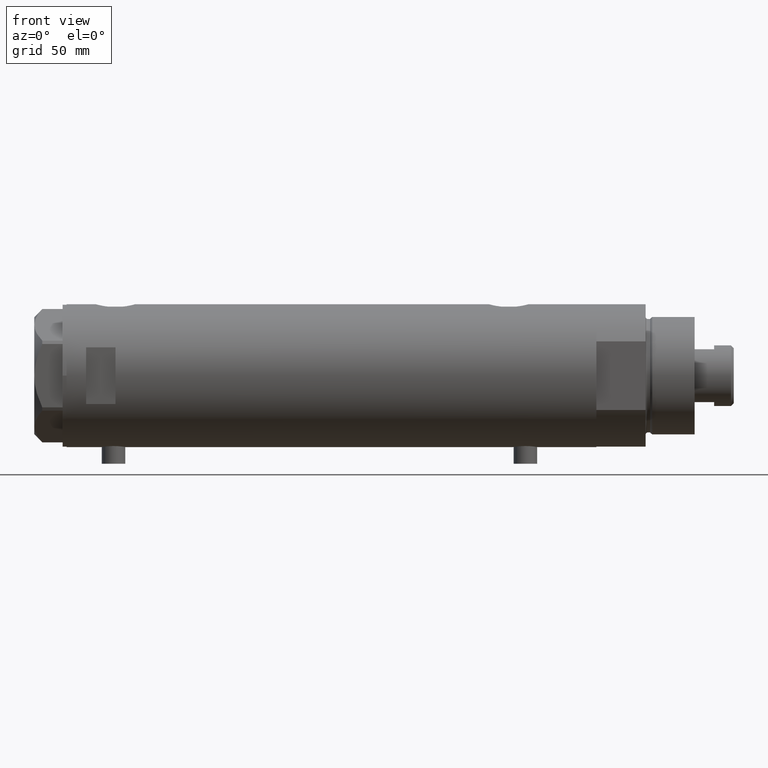
[diagram: clean part render]
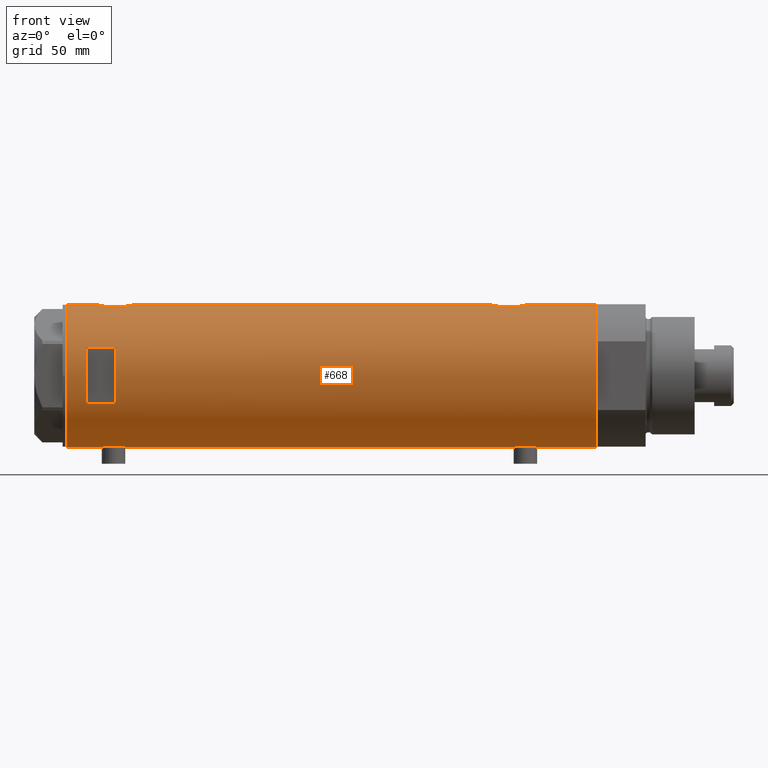
[diagram: same view with one face highlighted and labeled with its STEP entity id]
A machine part, front view. The second image highlights one B-rep face of the part: STEP entity #668.
In plain terms, the highlighted cylindrical surface (partial cylindrical patch) has radius 36.5 mm, axis along (-1, -0, 0).
Its self-contained STEP definition (entity closure, byte-faithful):
#6 = CARTESIAN_POINT ( 'NONE',  ( -36.49999999999999289, -0.4082012689449562859, 105.1500000000000057 ) ) ;
#15 = CARTESIAN_POINT ( 'NONE',  ( 35.39807338191549491, -8.909271871950329214, -85.94919617267213141 ) ) ;
#35 = CARTESIAN_POINT ( 'NONE',  ( 0.000000000000000000, 0.000000000000000000, -135.4000000000000057 ) ) ;
#49 = CARTESIAN_POINT ( 'NONE',  ( -36.39621039793029666, -2.776267550998806843, -93.48569246893222839 ) ) ;
#58 = DIRECTION ( 'NONE',  ( 0.000000000000000000, 0.000000000000000000, 1.000000000000000000 ) ) ;
#93 = CARTESIAN_POINT ( 'NONE',  ( -35.99695583620881933, -6.039273428153905776, 109.7777555501224214 ) ) ;
#95 = CARTESIAN_POINT ( 'NONE',  ( 36.29582892817134621, -3.881628320031159873, 119.6293443453498782 ) ) ;
#113 = CARTESIAN_POINT ( 'NONE',  ( -36.02823773219768810, -5.849994928883552880, 109.1904489851435613 ) ) ;
#114 = VECTOR ( 'NONE', #950, 1000.000000000000000 ) ;
#144 = ORIENTED_EDGE ( 'NONE', *, *, #1298, .F. ) ;
#159 = CARTESIAN_POINT ( 'NONE',  ( 36.18850502651835654, -4.779575967213809840, 101.6022084710984501 ) ) ;
#171 = DIRECTION ( 'NONE',  ( 0.000000000000000000, 0.000000000000000000, 1.000000000000000000 ) ) ;
#190 = ORIENTED_EDGE ( 'NONE', *, *, #750, .F. ) ;
#192 = CARTESIAN_POINT ( 'NONE',  ( 35.93373217836897737, -6.415110096330620237, 118.0870426635508892 ) ) ;
#198 = LINE ( 'NONE', #1580, #398 ) ;
#207 = CARTESIAN_POINT ( 'NONE',  ( 36.50000000000000000, 0.000000000000000000, 100.4000000000000057 ) ) ;
#251 = CARTESIAN_POINT ( 'NONE',  ( -36.50000000000000000, 4.469960816887838430E-15, -135.4000000000000057 ) ) ;
#257 = DIRECTION ( 'NONE',  ( 0.000000000000000000, 0.000000000000000000, 1.000000000000000000 ) ) ;
#284 = CARTESIAN_POINT ( 'NONE',  ( -36.49999999999999289, -0.4082012689449562859, -105.3499999999999943 ) ) ;
#289 = CARTESIAN_POINT ( 'NONE',  ( 35.93363298843768661, -6.415574104180976178, -98.28651472888890339 ) ) ;
#303 = CARTESIAN_POINT ( 'NONE',  ( -36.06605150775667568, -5.613853192123348101, -101.8776568827254465 ) ) ;
#324 = CARTESIAN_POINT ( 'NONE',  ( -36.35061318816141096, -3.303361544904982239, -104.4096404194302039 ) ) ;
#330 = VERTEX_POINT ( 'NONE', #1333 ) ;
#355 = CARTESIAN_POINT ( 'NONE',  ( 35.52323553852023963, -8.411295122831250026, -85.10247607048908947 ) ) ;
#364 = CARTESIAN_POINT ( 'NONE',  ( -36.47262891311153510, -1.427622242603855396, -93.01175370788300256 ) ) ;
#384 = CARTESIAN_POINT ( 'NONE',  ( -36.44454782745417276, -2.020757099930494682, -93.18214135579002289 ) ) ;
#388 = ORIENTED_EDGE ( 'NONE', *, *, #2095, .T. ) ;
#398 = VECTOR ( 'NONE', #1857, 1000.000000000000000 ) ;
#420 = CARTESIAN_POINT ( 'NONE',  ( 36.50000000000000000, 4.344614706140975428E-19, -80.59999999999999432 ) ) ;
#430 = CARTESIAN_POINT ( 'NONE',  ( 36.41856252531823657, -2.482507212621166470, 100.7004348715349380 ) ) ;
#445 = VERTEX_POINT ( 'NONE', #3667 ) ;
#459 = CARTESIAN_POINT ( 'NONE',  ( -36.36635911126388265, -3.125815113635437292, 105.9839439959209955 ) ) ;
#462 = CARTESIAN_POINT ( 'NONE',  ( 36.09633718678917802, -5.417295330713078449, 118.8091486734521141 ) ) ;
#474 = CARTESIAN_POINT ( 'NONE',  ( 35.79656810172926384, -7.133411935499478496, 103.3874512144232511 ) ) ;
#477 = CARTESIAN_POINT ( 'NONE',  ( -14.49137674618942739, -33.50000000000000000, 125.3999999999999773 ) ) ;
#504 = CARTESIAN_POINT ( 'NONE',  ( 35.69273631926343882, -7.635692914629149008, 103.9379980434851234 ) ) ;
#507 = CARTESIAN_POINT ( 'NONE',  ( -36.14410773716529235, -5.085921866747754372, 115.0383587842047035 ) ) ;
#514 = DIRECTION ( 'NONE',  ( 0.000000000000000000, 0.000000000000000000, 1.000000000000000000 ) ) ;
#529 = CARTESIAN_POINT ( 'NONE',  ( -36.30107494031872051, -3.820993528321233068, 116.3630615353631015 ) ) ;
#542 = VERTEX_POINT ( 'NONE', #477 ) ;
#597 = VERTEX_POINT ( 'NONE', #635 ) ;
#600 = CARTESIAN_POINT ( 'NONE',  ( -35.96816095843705341, -6.208699946936198977, -99.92496377127785934 ) ) ;
#623 = VECTOR ( 'NONE', #1896, 1000.000000000000000 ) ;
#627 = CARTESIAN_POINT ( 'NONE',  ( 36.50000000000000000, 0.000000000000000000, -100.5999999999999801 ) ) ;
#635 = CARTESIAN_POINT ( 'NONE',  ( -36.50000000000000000, 1.603939656238031057E-15, -92.84999999999999432 ) ) ;
#643 = LINE ( 'NONE', #2988, #4153 ) ;
#647 = LINE ( 'NONE', #1557, #1582 ) ;
#660 = CARTESIAN_POINT ( 'NONE',  ( -35.98821803976956346, -6.090959022952117330, -97.68426116850579888 ) ) ;
#668 = ADVANCED_FACE ( 'NONE', ( #3476, #2877 ), #2581, .T. ) ;
#688 = CARTESIAN_POINT ( 'NONE',  ( 36.12724769814495573, -5.207618053557754756, -82.05935879511534381 ) ) ;
#705 = CARTESIAN_POINT ( 'NONE',  ( -36.44621655743049615, -2.016281777336074832, 105.4701702330088438 ) ) ;
#708 = EDGE_CURVE ( 'NONE', #1941, #445, #1974, .T. ) ;
#714 = DIRECTION ( 'NONE',  ( 1.000000000000000000, 0.000000000000000000, 0.000000000000000000 ) ) ;
#750 = EDGE_CURVE ( 'NONE', #1249, #2876, #3085, .T. ) ;
#770 = CARTESIAN_POINT ( 'NONE',  ( -36.30107494031872051, -3.820993528321233068, -94.13693846463692694 ) ) ;
#775 = VERTEX_POINT ( 'NONE', #1076 ) ;
#793 = CARTESIAN_POINT ( 'NONE',  ( -36.16096637594732499, -4.968588355849258953, 107.5866550718223920 ) ) ;
#813 = CARTESIAN_POINT ( 'NONE',  ( -36.26692673949090562, -4.128477002029503851, 106.6900001256783526 ) ) ;
#817 = DIRECTION ( 'NONE',  ( 1.000000000000000000, 0.000000000000000000, 0.000000000000000000 ) ) ;
#823 = AXIS2_PLACEMENT_3D ( 'NONE', #4263, #3203, #877 ) ;
#843 = EDGE_CURVE ( 'NONE', #2062, #2475, #2643, .T. ) ;
#844 = CARTESIAN_POINT ( 'NONE',  ( 0.000000000000000000, 0.000000000000000000, 135.4000000000000057 ) ) ;
#851 = CARTESIAN_POINT ( 'NONE',  ( 36.50000000000000000, 4.344614706140975428E-19, -80.59999999999999432 ) ) ;
#859 = ORIENTED_EDGE ( 'NONE', *, *, #1473, .T. ) ;
#864 = CARTESIAN_POINT ( 'NONE',  ( -36.43335814606993495, -2.212659578761325463, 117.2487639916951139 ) ) ;
#877 = DIRECTION ( 'NONE',  ( 1.000000000000000000, 0.000000000000000000, 0.000000000000000000 ) ) ;
#881 = CARTESIAN_POINT ( 'NONE',  ( 36.50000000000000711, -0.5031001875915692700, 100.4000000000000341 ) ) ;
#884 = CARTESIAN_POINT ( 'NONE',  ( -36.49297138689434661, -0.8222528563518530786, 117.6093311205343781 ) ) ;
#943 = DIRECTION ( 'NONE',  ( -0.000000000000000000, -0.000000000000000000, -1.000000000000000000 ) ) ;
#950 = DIRECTION ( 'NONE',  ( 0.000000000000000000, 0.000000000000000000, 1.000000000000000000 ) ) ;
#960 = CARTESIAN_POINT ( 'NONE',  ( 35.72742963626381396, -7.471989379615407323, -97.25062260412774151 ) ) ;
#978 = CARTESIAN_POINT ( 'NONE',  ( -35.96095902952617251, -6.249754054240900913, -99.51658765420468455 ) ) ;
#984 = B_SPLINE_CURVE_WITH_KNOTS ( 'NONE', 3,
 ( #3096, #6, #1383, #2406, #705, #2072, #2769, #459, #3648, #4314, #813, #2942, #793, #2246, #3195, #113, #1798, #93, #3606, #1209, #1818, #3555, #2502, #1885, #4244, #3236, #1494, #1136, #4337, #507, #3627, #2568, #2868, #4273, #529, #2523, #4288, #864, #1541, #3986, #2224, #884, #3213, #1866 ),
 .UNSPECIFIED., .F., .F.,
 ( 4, 2, 2, 2, 2, 2, 2, 2, 2, 2, 2, 2, 2, 2, 2, 2, 2, 2, 2, 2, 2, 4 ),
 ( 0.01957644481942643136, 0.02079966591703043266, 0.02202288701463443049, 0.02263449756343642941, 0.02324610811223842832, 0.02446932920984242615, 0.02569255030744642398, 0.02691577140505042529, 0.02752738195385242420, 0.02813899250265442659, 0.02936221360025846605, 0.03058543469786250205, 0.03119704524666452178, 0.03180865579546654498, 0.03303187689307057751, 0.03364348744187262152, 0.03425509799067465166, 0.03547831908827869807, 0.03670154018588274447, 0.03731315073468477461, 0.03792476128348679781, 0.03914798238109084422 ),
 .UNSPECIFIED. ) ;
#1002 = CARTESIAN_POINT ( 'NONE',  ( -36.39558535855674393, -2.764807686268001774, -104.7089411854560979 ) ) ;
#1008 = CARTESIAN_POINT ( 'NONE',  ( 36.44881677724178104, -1.995085670027227032, -100.4118034536946169 ) ) ;
#1026 = CARTESIAN_POINT ( 'NONE',  ( 36.09633718678917802, -5.417295330713078449, -82.19085132654787174 ) ) ;
#1033 = EDGE_CURVE ( 'NONE', #4172, #775, #2465, .T. ) ;
#1076 = CARTESIAN_POINT ( 'NONE',  ( 36.50000000000000000, 0.000000000000000000, -100.5999999999999801 ) ) ;
#1088 = CARTESIAN_POINT ( 'NONE',  ( -36.50000000000000000, 1.603939656238031057E-15, -92.84999999999999432 ) ) ;
#1094 = CARTESIAN_POINT ( 'NONE',  ( 36.00092304812866217, -6.029438422680412302, -82.60691844426345654 ) ) ;
#1136 = CARTESIAN_POINT ( 'NONE',  ( -36.06543684817881257, -5.617774235967367247, 114.1695444797170182 ) ) ;
#1179 = ORIENTED_EDGE ( 'NONE', *, *, #4406, .F. ) ;
#1200 = CARTESIAN_POINT ( 'NONE',  ( 36.34184199234172041, -3.427106516421255744, 100.9925908631996663 ) ) ;
#1209 = CARTESIAN_POINT ( 'NONE',  ( -35.96816095843705341, -6.208699946936198977, 110.5750362287220838 ) ) ;
#1227 = ORIENTED_EDGE ( 'NONE', *, *, #2383, .F. ) ;
#1249 = VERTEX_POINT ( 'NONE', #3784 ) ;
#1253 = CARTESIAN_POINT ( 'NONE',  ( -36.46614432713124643, -1.622933015999963313, -105.1496659738684798 ) ) ;
#1257 = CARTESIAN_POINT ( 'NONE',  ( 36.50000000000000711, -0.5031001875915692700, -100.5999999999999943 ) ) ;
#1271 = CARTESIAN_POINT ( 'NONE',  ( -36.49315367594273596, -0.8144497809045447845, -105.3103978555474924 ) ) ;
#1298 = EDGE_CURVE ( 'NONE', #2876, #2441, #4079, .T. ) ;
#1312 = EDGE_CURVE ( 'NONE', #330, #3563, #2450, .T. ) ;
#1321 = CARTESIAN_POINT ( 'NONE',  ( 35.69273631926343882, -7.635692914629149008, -97.06200195651487661 ) ) ;
#1333 = CARTESIAN_POINT ( 'NONE',  ( 36.50000000000000000, 4.344614706140975428E-19, 120.3999999999999915 ) ) ;
#1383 = CARTESIAN_POINT ( 'NONE',  ( -36.49315367594273596, -0.8144497809045447845, 105.1896021444524507 ) ) ;
#1390 = CARTESIAN_POINT ( 'NONE',  ( 35.29999999999999716, -9.282241108697837362, -86.87978495245235422 ) ) ;
#1391 = EDGE_CURVE ( 'NONE', #597, #3188, #3379, .T. ) ;
#1403 = AXIS2_PLACEMENT_3D ( 'NONE', #35, #58, #714 ) ;
#1473 = EDGE_CURVE ( 'NONE', #330, #2441, #643, .T. ) ;
#1476 = CARTESIAN_POINT ( 'NONE',  ( 35.79638309643555516, -7.141827709208434349, 117.4170192696954445 ) ) ;
#1494 = CARTESIAN_POINT ( 'NONE',  ( -36.02782481185206365, -5.852531070448506512, 113.6027700895219112 ) ) ;
#1500 = CARTESIAN_POINT ( 'NONE',  ( 36.44931971524465553, -1.985988150549293341, 120.2136686053176220 ) ) ;
#1513 = CARTESIAN_POINT ( 'NONE',  ( 35.83108131285856501, -6.958268797611358636, 103.2136921662717697 ) ) ;
#1521 = VERTEX_POINT ( 'NONE', #2724 ) ;
#1537 = CARTESIAN_POINT ( 'NONE',  ( 36.29527920868844859, -3.886508670267145416, 101.1728372416913970 ) ) ;
#1541 = CARTESIAN_POINT ( 'NONE',  ( -36.44454782745417276, -2.020757099930494682, 117.3178586442099913 ) ) ;
#1546 = CARTESIAN_POINT ( 'NONE',  ( 36.48988302519020266, -0.9927202255321166957, 120.3632698941130172 ) ) ;
#1557 = CARTESIAN_POINT ( 'NONE',  ( -14.49137674618942739, -33.50000000000000000, -135.4000000000000057 ) ) ;
#1563 = CARTESIAN_POINT ( 'NONE',  ( 35.39794035667548400, -8.909777761736840773, 105.7504584091054767 ) ) ;
#1580 = CARTESIAN_POINT ( 'NONE',  ( 14.49137674618942739, -33.50000000000000000, -135.4000000000000057 ) ) ;
#1582 = VECTOR ( 'NONE', #943, 1000.000000000000000 ) ;
#1602 = ORIENTED_EDGE ( 'NONE', *, *, #1391, .F. ) ;
#1604 = CARTESIAN_POINT ( 'NONE',  ( 35.29999999999999716, -9.282241108697837362, -135.4000000000000057 ) ) ;
#1626 = VECTOR ( 'NONE', #3617, 1000.000000000000000 ) ;
#1636 = CARTESIAN_POINT ( 'NONE',  ( 36.48960339336947101, -1.002724032967601708, -100.5622486597349621 ) ) ;
#1651 = ORIENTED_EDGE ( 'NONE', *, *, #2016, .F. ) ;
#1653 = CARTESIAN_POINT ( 'NONE',  ( -36.09582946723050867, -5.421573071064194060, -102.2360827837048731 ) ) ;
#1672 = CARTESIAN_POINT ( 'NONE',  ( -35.99695583620881933, -6.039273428153905776, -100.7222444498775502 ) ) ;
#1684 = EDGE_CURVE ( 'NONE', #445, #775, #1797, .T. ) ;
#1699 = CARTESIAN_POINT ( 'NONE',  ( 36.41918031349423757, -2.473644131148923009, -80.89811654536808305 ) ) ;
#1749 = VERTEX_POINT ( 'NONE', #4049 ) ;
#1760 = CARTESIAN_POINT ( 'NONE',  ( 36.44931971524465553, -1.985988150549293341, -80.78633139468232116 ) ) ;
#1795 = CARTESIAN_POINT ( 'NONE',  ( 36.48960339336947101, -1.002724032967601708, 100.4377513402650379 ) ) ;
#1797 = LINE ( 'NONE', #3211, #3145 ) ;
#1798 = CARTESIAN_POINT ( 'NONE',  ( -36.01675918113430441, -5.920026275461277798, 109.3856044348210759 ) ) ;
#1808 = ORIENTED_EDGE ( 'NONE', *, *, #3098, .F. ) ;
#1818 = CARTESIAN_POINT ( 'NONE',  ( -35.96095902952617251, -6.249754054240900913, 110.9834123457953012 ) ) ;
#1822 = CARTESIAN_POINT ( 'NONE',  ( 35.72583162417570435, -7.484316398521980496, 117.0504264371949716 ) ) ;
#1838 = CARTESIAN_POINT ( 'NONE',  ( 35.29999999999999716, -9.282241108697837362, 106.6797849524523656 ) ) ;
#1857 = DIRECTION ( 'NONE',  ( 0.000000000000000000, 0.000000000000000000, 1.000000000000000000 ) ) ;
#1863 = CARTESIAN_POINT ( 'NONE',  ( 36.00068527486601511, -6.030855700422090848, 102.4079867287264705 ) ) ;
#1866 = CARTESIAN_POINT ( 'NONE',  ( -36.50000000000000000, 1.603939656238031057E-15, 117.6500000000000057 ) ) ;
#1870 = DIRECTION ( 'NONE',  ( -1.000000000000000000, 0.000000000000000000, 0.000000000000000000 ) ) ;
#1885 = CARTESIAN_POINT ( 'NONE',  ( -35.98821803976956346, -6.090959022952117330, 112.8157388314941869 ) ) ;
#1891 = CARTESIAN_POINT ( 'NONE',  ( 36.50000000000000711, -0.4962708696651116913, 120.3999999999999915 ) ) ;
#1896 = DIRECTION ( 'NONE',  ( 0.000000000000000000, 0.000000000000000000, 1.000000000000000000 ) ) ;
#1901 = ORIENTED_EDGE ( 'NONE', *, *, #1312, .F. ) ;
#1940 = LINE ( 'NONE', #1604, #114 ) ;
#1941 = VERTEX_POINT ( 'NONE', #2123 ) ;
#1945 = CARTESIAN_POINT ( 'NONE',  ( -35.96794010939611752, -6.209972807992079069, -98.28444451008645899 ) ) ;
#1949 = CARTESIAN_POINT ( 'NONE',  ( 36.41856252531823657, -2.482507212621166470, -100.2995651284649909 ) ) ;
#1974 = CIRCLE ( 'NONE', #1403, 36.50000000000000000 ) ;
#1983 = DIRECTION ( 'NONE',  ( 0.000000000000000000, 0.000000000000000000, 1.000000000000000000 ) ) ;
#1991 = EDGE_CURVE ( 'NONE', #2107, #3563, #3296, .T. ) ;
#2016 = EDGE_CURVE ( 'NONE', #1749, #3190, #198, .T. ) ;
#2025 = CARTESIAN_POINT ( 'NONE',  ( -36.14410773716529235, -5.085921866747754372, -95.46164121579526807 ) ) ;
#2031 = CARTESIAN_POINT ( 'NONE',  ( 36.50000000000000711, -0.4962708696651116913, -80.60000000000000853 ) ) ;
#2056 = CARTESIAN_POINT ( 'NONE',  ( 35.79638309643555516, -7.141827709208434349, -83.58298073030449871 ) ) ;
#2062 = VERTEX_POINT ( 'NONE', #851 ) ;
#2065 = CARTESIAN_POINT ( 'NONE',  ( 35.29999999999999716, -9.282241108697837362, 114.1202150475476316 ) ) ;
#2072 = CARTESIAN_POINT ( 'NONE',  ( -36.40915499150419521, -2.580495338846545472, 105.7039498664452566 ) ) ;
#2086 = CARTESIAN_POINT ( 'NONE',  ( -36.50000000000000000, 4.469960816887838430E-15, 135.4000000000000057 ) ) ;
#2095 = EDGE_CURVE ( 'NONE', #2062, #3660, #4295, .T. ) ;
#2107 = VERTEX_POINT ( 'NONE', #3408 ) ;
#2110 = CARTESIAN_POINT ( 'NONE',  ( -36.21356728133255842, -4.566014386638764577, -94.82737339235254126 ) ) ;
#2123 = CARTESIAN_POINT ( 'NONE',  ( -36.50000000000000000, 4.469960816887838430E-15, -135.4000000000000057 ) ) ;
#2136 = AXIS2_PLACEMENT_3D ( 'NONE', #3341, #3764, #4082 ) ;
#2137 = CARTESIAN_POINT ( 'NONE',  ( 35.29999999999999716, -9.282241108697837362, -86.87978495245235422 ) ) ;
#2180 = VECTOR ( 'NONE', #3471, 1000.000000000000000 ) ;
#2208 = CARTESIAN_POINT ( 'NONE',  ( 36.50000000000000000, 4.344614706140975428E-19, 120.3999999999999915 ) ) ;
#2209 = CARTESIAN_POINT ( 'NONE',  ( 0.000000000000000000, 0.000000000000000000, 110.3999999999999773 ) ) ;
#2224 = CARTESIAN_POINT ( 'NONE',  ( -36.47262891311153510, -1.427622242603855396, 117.4882462921170259 ) ) ;
#2246 = CARTESIAN_POINT ( 'NONE',  ( -36.09582946723050867, -5.421573071064194060, 108.2639172162951553 ) ) ;
#2264 = ORIENTED_EDGE ( 'NONE', *, *, #1684, .T. ) ;
#2275 = CARTESIAN_POINT ( 'NONE',  ( -36.19666146462960654, -4.704890678739094945, -103.2342985951078447 ) ) ;
#2280 = ORIENTED_EDGE ( 'NONE', *, *, #708, .T. ) ;
#2298 = CARTESIAN_POINT ( 'NONE',  ( 36.50000000000000000, 0.000000000000000000, 135.4000000000000057 ) ) ;
#2323 = CARTESIAN_POINT ( 'NONE',  ( 35.83108131285856501, -6.958268797611358636, -97.78630783372824453 ) ) ;
#2344 = CARTESIAN_POINT ( 'NONE',  ( -36.44621655743049615, -2.016281777336074832, -105.0298297669911562 ) ) ;
#2366 = CARTESIAN_POINT ( 'NONE',  ( -36.01675918113430441, -5.920026275461277798, -101.1143955651789383 ) ) ;
#2370 = ORIENTED_EDGE ( 'NONE', *, *, #843, .F. ) ;
#2372 = CARTESIAN_POINT ( 'NONE',  ( -36.50000000000000000, 4.469960816887838430E-15, -135.4000000000000057 ) ) ;
#2376 = CARTESIAN_POINT ( 'NONE',  ( 14.49137674618942739, -33.50000000000000000, 125.3999999999999773 ) ) ;
#2383 = EDGE_CURVE ( 'NONE', #4166, #1749, #4162, .T. ) ;
#2396 = CARTESIAN_POINT ( 'NONE',  ( -36.50000000000000000, 4.469960493350315609E-15, 105.1499999999999915 ) ) ;
#2406 = CARTESIAN_POINT ( 'NONE',  ( -36.46614432713124643, -1.622933015999963313, 105.3503340261315202 ) ) ;
#2441 = VERTEX_POINT ( 'NONE', #2298 ) ;
#2450 = B_SPLINE_CURVE_WITH_KNOTS ( 'NONE', 3,
 ( #2208, #1891, #1546, #1500, #2917, #2890, #95, #4291, #3611, #2549, #462, #3197, #192, #1476, #1822, #2948, #3585, #2846 ),
 .UNSPECIFIED., .F., .F.,
 ( 4, 2, 2, 2, 2, 2, 2, 2, 4 ),
 ( 0.01190956515753145012, 0.01339852714138290227, 0.01488748912523435441, 0.01637645110908580656, 0.01712093210101153090, 0.01786541309293725871, 0.01935437507678870739, 0.02084333706064015260, 0.02382126102834301526 ),
 .UNSPECIFIED. ) ;
#2455 = EDGE_CURVE ( 'NONE', #1521, #597, #3958, .T. ) ;
#2465 = B_SPLINE_CURVE_WITH_KNOTS ( 'NONE', 3,
 ( #4455, #2685, #4040, #1321, #960, #2618, #2323, #289, #3724, #2996, #4366, #2710, #4015, #1949, #1008, #1636, #1257, #627 ),
 .UNSPECIFIED., .F., .F.,
 ( 4, 2, 2, 2, 2, 2, 2, 2, 4 ),
 ( -0.01189883390545606531, -0.008924125429092034240, -0.008180448310001031675, -0.007436771190910029979, -0.005949416952728023983, -0.004462062714546017987, -0.002974708476364010257, -0.001487354238182005128, 1.734723475976807094E-18 ),
 .UNSPECIFIED. ) ;
#2475 = VERTEX_POINT ( 'NONE', #2137 ) ;
#2489 = EDGE_LOOP ( 'NONE', ( #1227, #2825, #1179, #1651 ) ) ;
#2502 = CARTESIAN_POINT ( 'NONE',  ( -35.96794010939611752, -6.209972807992079069, 112.2155554899135836 ) ) ;
#2504 = ORIENTED_EDGE ( 'NONE', *, *, #2455, .F. ) ;
#2523 = CARTESIAN_POINT ( 'NONE',  ( -36.36656776002988778, -3.137002187003158582, 116.8213640927363315 ) ) ;
#2545 = ORIENTED_EDGE ( 'NONE', *, *, #1033, .F. ) ;
#2549 = CARTESIAN_POINT ( 'NONE',  ( 36.12724769814495573, -5.207618053557754756, 118.9406412048846846 ) ) ;
#2557 = CARTESIAN_POINT ( 'NONE',  ( 36.50000000000000000, 0.000000000000000000, -135.4000000000000057 ) ) ;
#2568 = CARTESIAN_POINT ( 'NONE',  ( -36.19599073318030236, -4.702920041824403263, 115.5215383167658132 ) ) ;
#2581 = CYLINDRICAL_SURFACE ( 'NONE', #823, 36.50000000000000000 ) ;
#2597 = EDGE_CURVE ( 'NONE', #3188, #1249, #984, .T. ) ;
#2618 = CARTESIAN_POINT ( 'NONE',  ( 35.79656810172926384, -7.133411935499478496, -97.61254878557674886 ) ) ;
#2640 = CARTESIAN_POINT ( 'NONE',  ( -36.26692673949090562, -4.128477002029503851, -103.8099998743216474 ) ) ;
#2642 = CIRCLE ( 'NONE', #2136, 36.50000000000000000 ) ;
#2643 = B_SPLINE_CURVE_WITH_KNOTS ( 'NONE', 3,
 ( #420, #2031, #3493, #1760, #1699, #2734, #3154, #3311, #3106, #688, #1026, #1094, #3788, #2056, #3449, #355, #15, #1390 ),
 .UNSPECIFIED., .F., .F.,
 ( 4, 2, 2, 2, 2, 2, 2, 2, 4 ),
 ( 0.01190956515753145012, 0.01339852714138290227, 0.01488748912523435441, 0.01637645110908580656, 0.01712093210101153090, 0.01786541309293725871, 0.01935437507678870739, 0.02084333706064015260, 0.02382126102834301526 ),
 .UNSPECIFIED. ) ;
#2685 = CARTESIAN_POINT ( 'NONE',  ( 35.39794035667548400, -8.909777761736840773, -95.24954159089452332 ) ) ;
#2688 = AXIS2_PLACEMENT_3D ( 'NONE', #844, #171, #817 ) ;
#2710 = CARTESIAN_POINT ( 'NONE',  ( 36.29527920868844859, -3.886508670267145416, -99.82716275830860297 ) ) ;
#2724 = CARTESIAN_POINT ( 'NONE',  ( -36.50000000000000000, 4.469960493350315609E-15, -105.3499999999999943 ) ) ;
#2734 = CARTESIAN_POINT ( 'NONE',  ( 36.34247810649306132, -3.420510937483959513, -81.19013481598273074 ) ) ;
#2769 = CARTESIAN_POINT ( 'NONE',  ( -36.39558535855674393, -2.764807686268001774, 105.7910588145438879 ) ) ;
#2796 = CARTESIAN_POINT ( 'NONE',  ( -36.26616882068471170, -4.135065845178865551, -94.39584944059907912 ) ) ;
#2815 = EDGE_CURVE ( 'NONE', #4172, #2475, #1940, .T. ) ;
#2825 = ORIENTED_EDGE ( 'NONE', *, *, #4440, .F. ) ;
#2845 = B_SPLINE_CURVE_WITH_KNOTS ( 'NONE', 3,
 ( #1838, #1563, #2861, #504, #4266, #474, #1513, #3189, #1863, #2880, #159, #1537, #1200, #430, #3623, #1795, #881, #207 ),
 .UNSPECIFIED., .F., .F.,
 ( 4, 2, 2, 2, 2, 2, 2, 2, 4 ),
 ( -0.01189883390545606531, -0.008924125429092034240, -0.008180448310001031675, -0.007436771190910029979, -0.005949416952728023983, -0.004462062714546017987, -0.002974708476364010257, -0.001487354238182005128, 1.734723475976807094E-18 ),
 .UNSPECIFIED. ) ;
#2846 = CARTESIAN_POINT ( 'NONE',  ( 35.29999999999999716, -9.282241108697837362, 114.1202150475476316 ) ) ;
#2861 = CARTESIAN_POINT ( 'NONE',  ( 35.52320828895289395, -8.411622242316134646, 104.9022713405538667 ) ) ;
#2868 = CARTESIAN_POINT ( 'NONE',  ( -36.21356728133255842, -4.566014386638764577, 115.6726266076474587 ) ) ;
#2876 = VERTEX_POINT ( 'NONE', #2086 ) ;
#2877 = FACE_BOUND ( 'NONE', #2489, .T. ) ;
#2880 = CARTESIAN_POINT ( 'NONE',  ( 36.12792682573228831, -5.214735277442335004, 101.8530688201130090 ) ) ;
#2890 = CARTESIAN_POINT ( 'NONE',  ( 36.34247810649306132, -3.420510937483959513, 119.8098651840172693 ) ) ;
#2917 = CARTESIAN_POINT ( 'NONE',  ( 36.41918031349423757, -2.473644131148923009, 120.1018834546319027 ) ) ;
#2942 = CARTESIAN_POINT ( 'NONE',  ( -36.19666146462960654, -4.704890678739094945, 107.2657014048921553 ) ) ;
#2948 = CARTESIAN_POINT ( 'NONE',  ( 35.52323553852023963, -8.411295122831250026, 115.8975239295108253 ) ) ;
#2988 = CARTESIAN_POINT ( 'NONE',  ( 36.50000000000000000, 0.000000000000000000, -135.4000000000000057 ) ) ;
#2996 = CARTESIAN_POINT ( 'NONE',  ( 36.12792682573228831, -5.214735277442335004, -99.14693117988699100 ) ) ;
#3011 = CARTESIAN_POINT ( 'NONE',  ( -36.06543684817881257, -5.617774235967367247, -96.33045552028301017 ) ) ;
#3025 = ORIENTED_EDGE ( 'NONE', *, *, #3582, .F. ) ;
#3052 = CARTESIAN_POINT ( 'NONE',  ( -35.99659093586380010, -6.041447834568799635, -97.48577587985174375 ) ) ;
#3069 = LINE ( 'NONE', #251, #4251 ) ;
#3085 = LINE ( 'NONE', #2372, #2180 ) ;
#3096 = CARTESIAN_POINT ( 'NONE',  ( -36.50000000000000000, 4.469960493350315609E-15, 105.1499999999999915 ) ) ;
#3098 = EDGE_CURVE ( 'NONE', #2107, #3660, #2845, .T. ) ;
#3106 = CARTESIAN_POINT ( 'NONE',  ( 36.18674680775578167, -4.776679548204626258, -81.81107683068751157 ) ) ;
#3145 = VECTOR ( 'NONE', #3964, 1000.000000000000000 ) ;
#3154 = CARTESIAN_POINT ( 'NONE',  ( 36.29582892817134621, -3.881628320031159873, -81.37065565465007921 ) ) ;
#3188 = VERTEX_POINT ( 'NONE', #2396 ) ;
#3189 = CARTESIAN_POINT ( 'NONE',  ( 35.93363298843768661, -6.415574104180976178, 102.7134852711111108 ) ) ;
#3190 = VERTEX_POINT ( 'NONE', #2376 ) ;
#3195 = CARTESIAN_POINT ( 'NONE',  ( -36.06605150775667568, -5.613853192123348101, 108.6223431172745961 ) ) ;
#3197 = CARTESIAN_POINT ( 'NONE',  ( 36.00092304812866217, -6.029438422680412302, 118.3930815557365008 ) ) ;
#3203 = DIRECTION ( 'NONE',  ( 0.000000000000000000, 0.000000000000000000, 1.000000000000000000 ) ) ;
#3211 = CARTESIAN_POINT ( 'NONE',  ( 36.50000000000000000, 0.000000000000000000, -135.4000000000000057 ) ) ;
#3213 = CARTESIAN_POINT ( 'NONE',  ( -36.50000000000001421, -0.4136690418839317762, 117.6500000000000341 ) ) ;
#3236 = CARTESIAN_POINT ( 'NONE',  ( -36.01639592019625979, -5.922235714778421034, 113.4079680242691239 ) ) ;
#3295 = AXIS2_PLACEMENT_3D ( 'NONE', #2209, #514, #1870 ) ;
#3296 = LINE ( 'NONE', #4017, #623 ) ;
#3311 = CARTESIAN_POINT ( 'NONE',  ( 36.21540437201188922, -4.554727782332258279, -81.69402370911372202 ) ) ;
#3339 = CARTESIAN_POINT ( 'NONE',  ( -36.36635911126388265, -3.125815113635437292, -104.5160560040790330 ) ) ;
#3341 = CARTESIAN_POINT ( 'NONE',  ( 0.000000000000000000, 0.000000000000000000, 125.3999999999999773 ) ) ;
#3355 = CARTESIAN_POINT ( 'NONE',  ( -36.40915499150419521, -2.580495338846545472, -104.7960501335547860 ) ) ;
#3379 = LINE ( 'NONE', #3691, #3578 ) ;
#3381 = CARTESIAN_POINT ( 'NONE',  ( -36.16125812922425098, -4.962923794285024393, -95.29553914089241573 ) ) ;
#3408 = CARTESIAN_POINT ( 'NONE',  ( 35.29999999999999716, -9.282241108697837362, 106.6797849524523656 ) ) ;
#3414 = ORIENTED_EDGE ( 'NONE', *, *, #2815, .T. ) ;
#3415 = DIRECTION ( 'NONE',  ( 0.000000000000000000, 0.000000000000000000, 1.000000000000000000 ) ) ;
#3418 = CARTESIAN_POINT ( 'NONE',  ( -36.19599073318030236, -4.702920041824403263, -94.97846168323421523 ) ) ;
#3438 = CARTESIAN_POINT ( 'NONE',  ( -36.43335814606993495, -2.212659578761325463, -93.25123600830492876 ) ) ;
#3449 = CARTESIAN_POINT ( 'NONE',  ( 35.72583162417570435, -7.484316398521980496, -83.94957356280495731 ) ) ;
#3471 = DIRECTION ( 'NONE',  ( 0.000000000000000000, 0.000000000000000000, 1.000000000000000000 ) ) ;
#3476 = FACE_OUTER_BOUND ( 'NONE', #4278, .T. ) ;
#3493 = CARTESIAN_POINT ( 'NONE',  ( 36.48988302519020266, -0.9927202255321166957, -80.63673010588695433 ) ) ;
#3509 = CARTESIAN_POINT ( 'NONE',  ( -36.36656776002988778, -3.137002187003158582, -93.67863590726369694 ) ) ;
#3527 = CARTESIAN_POINT ( 'NONE',  ( 36.50000000000000000, 0.000000000000000000, 100.4000000000000057 ) ) ;
#3555 = CARTESIAN_POINT ( 'NONE',  ( -35.96087392089862789, -6.250243747806517369, 111.8091749077618289 ) ) ;
#3563 = VERTEX_POINT ( 'NONE', #2065 ) ;
#3578 = VECTOR ( 'NONE', #1983, 1000.000000000000000 ) ;
#3582 = EDGE_CURVE ( 'NONE', #1941, #1521, #3069, .T. ) ;
#3585 = CARTESIAN_POINT ( 'NONE',  ( 35.39807338191549491, -8.909271871950329214, 115.0508038273278402 ) ) ;
#3606 = CARTESIAN_POINT ( 'NONE',  ( -35.98855750525641639, -6.088954600884530777, 109.9756977384983543 ) ) ;
#3611 = CARTESIAN_POINT ( 'NONE',  ( 36.18674680775578167, -4.776679548204626258, 119.1889231693124742 ) ) ;
#3617 = DIRECTION ( 'NONE',  ( 0.000000000000000000, 0.000000000000000000, 1.000000000000000000 ) ) ;
#3623 = CARTESIAN_POINT ( 'NONE',  ( 36.44881677724178104, -1.995085670027227032, 100.5881965463053263 ) ) ;
#3627 = CARTESIAN_POINT ( 'NONE',  ( -36.16125812922425098, -4.962923794285024393, 115.2044608591076269 ) ) ;
#3648 = CARTESIAN_POINT ( 'NONE',  ( -36.35061318816141096, -3.303361544904982239, 106.0903595805698245 ) ) ;
#3660 = VERTEX_POINT ( 'NONE', #3527 ) ;
#3667 = CARTESIAN_POINT ( 'NONE',  ( 36.50000000000000000, 0.000000000000000000, -135.4000000000000057 ) ) ;
#3675 = CARTESIAN_POINT ( 'NONE',  ( -36.16096637594732499, -4.968588355849258953, -102.9133449281775938 ) ) ;
#3691 = CARTESIAN_POINT ( 'NONE',  ( -36.50000000000000000, 4.469960816887838430E-15, -135.4000000000000057 ) ) ;
#3692 = CARTESIAN_POINT ( 'NONE',  ( -35.96087392089862789, -6.250243747806517369, -98.69082509223817112 ) ) ;
#3716 = CARTESIAN_POINT ( 'NONE',  ( -35.98855750525641639, -6.088954600884530777, -100.5243022615016883 ) ) ;
#3724 = CARTESIAN_POINT ( 'NONE',  ( 36.00068527486601511, -6.030855700422090848, -98.59201327127351533 ) ) ;
#3764 = DIRECTION ( 'NONE',  ( -0.000000000000000000, 0.000000000000000000, -1.000000000000000000 ) ) ;
#3778 = CARTESIAN_POINT ( 'NONE',  ( -36.50000000000001421, -0.4136690418839317762, -92.85000000000000853 ) ) ;
#3784 = CARTESIAN_POINT ( 'NONE',  ( -36.50000000000000000, 1.603939656238031057E-15, 117.6500000000000057 ) ) ;
#3788 = CARTESIAN_POINT ( 'NONE',  ( 35.93373217836897737, -6.415110096330620237, -82.91295733644905397 ) ) ;
#3802 = CARTESIAN_POINT ( 'NONE',  ( -36.49297138689434661, -0.8222528563518530786, -92.89066887946567874 ) ) ;
#3889 = ORIENTED_EDGE ( 'NONE', *, *, #2597, .F. ) ;
#3958 = B_SPLINE_CURVE_WITH_KNOTS ( 'NONE', 3,
 ( #4077, #284, #1271, #1253, #2344, #3355, #1002, #3339, #324, #4010, #2640, #2275, #3675, #1653, #303, #4036, #2366, #1672, #3716, #600, #978, #3692, #1945, #660, #3052, #4450, #4103, #3011, #4409, #2025, #3381, #3418, #2110, #2796, #770, #3509, #49, #3438, #384, #4197, #364, #3802, #3778, #1088 ),
 .UNSPECIFIED., .F., .F.,
 ( 4, 2, 2, 2, 2, 2, 2, 2, 2, 2, 2, 2, 2, 2, 2, 2, 2, 2, 2, 2, 2, 4 ),
 ( 0.01957644481942643136, 0.02079966591703043266, 0.02202288701463443049, 0.02263449756343642941, 0.02324610811223842832, 0.02446932920984242615, 0.02569255030744642398, 0.02691577140505042529, 0.02752738195385242420, 0.02813899250265442659, 0.02936221360025846605, 0.03058543469786250205, 0.03119704524666452178, 0.03180865579546654498, 0.03303187689307057751, 0.03364348744187262152, 0.03425509799067465166, 0.03547831908827869807, 0.03670154018588274447, 0.03731315073468477461, 0.03792476128348679781, 0.03914798238109084422 ),
 .UNSPECIFIED. ) ;
#3964 = DIRECTION ( 'NONE',  ( 0.000000000000000000, 0.000000000000000000, 1.000000000000000000 ) ) ;
#3986 = CARTESIAN_POINT ( 'NONE',  ( -36.46417279006304568, -1.628689148039109247, 117.4375393869382123 ) ) ;
#4010 = CARTESIAN_POINT ( 'NONE',  ( -36.30176144752229561, -3.814344296723636951, -104.0680170195025624 ) ) ;
#4015 = CARTESIAN_POINT ( 'NONE',  ( 36.34184199234172041, -3.427106516421255744, -100.0074091368003337 ) ) ;
#4017 = CARTESIAN_POINT ( 'NONE',  ( 35.29999999999999716, -9.282241108697837362, -135.4000000000000057 ) ) ;
#4036 = CARTESIAN_POINT ( 'NONE',  ( -36.02823773219768810, -5.849994928883552880, -101.3095510148563960 ) ) ;
#4040 = CARTESIAN_POINT ( 'NONE',  ( 35.52320828895289395, -8.411622242316134646, -96.09772865944610487 ) ) ;
#4049 = CARTESIAN_POINT ( 'NONE',  ( 14.49137674618942739, -33.50000000000000000, 110.3999999999999773 ) ) ;
#4077 = CARTESIAN_POINT ( 'NONE',  ( -36.50000000000000000, 4.469960493350315609E-15, -105.3499999999999943 ) ) ;
#4079 = CIRCLE ( 'NONE', #2688, 36.50000000000000000 ) ;
#4082 = DIRECTION ( 'NONE',  ( 1.000000000000000000, 0.000000000000000000, 0.000000000000000000 ) ) ;
#4083 = ORIENTED_EDGE ( 'NONE', *, *, #1991, .T. ) ;
#4103 = CARTESIAN_POINT ( 'NONE',  ( -36.02782481185206365, -5.852531070448506512, -96.89722991047811718 ) ) ;
#4153 = VECTOR ( 'NONE', #257, 1000.000000000000000 ) ;
#4162 = CIRCLE ( 'NONE', #3295, 36.50000000000000000 ) ;
#4166 = VERTEX_POINT ( 'NONE', #4294 ) ;
#4172 = VERTEX_POINT ( 'NONE', #4344 ) ;
#4197 = CARTESIAN_POINT ( 'NONE',  ( -36.46417279006304568, -1.628689148039109247, -93.06246061306185879 ) ) ;
#4244 = CARTESIAN_POINT ( 'NONE',  ( -35.99659093586380010, -6.041447834568799635, 113.0142241201482420 ) ) ;
#4251 = VECTOR ( 'NONE', #3415, 1000.000000000000000 ) ;
#4263 = CARTESIAN_POINT ( 'NONE',  ( 0.000000000000000000, 0.000000000000000000, -135.4000000000000057 ) ) ;
#4266 = CARTESIAN_POINT ( 'NONE',  ( 35.72742963626381396, -7.471989379615407323, 103.7493773958722585 ) ) ;
#4273 = CARTESIAN_POINT ( 'NONE',  ( -36.26616882068471170, -4.135065845178865551, 116.1041505594009635 ) ) ;
#4278 = EDGE_LOOP ( 'NONE', ( #3025, #2280, #2264, #2545, #3414, #2370, #388, #1808, #4083, #1901, #859, #144, #190, #3889, #1602, #2504 ) ) ;
#4288 = CARTESIAN_POINT ( 'NONE',  ( -36.39621039793029666, -2.776267550998806843, 117.0143075310677716 ) ) ;
#4291 = CARTESIAN_POINT ( 'NONE',  ( 36.21540437201188922, -4.554727782332258279, 119.3059762908862353 ) ) ;
#4294 = CARTESIAN_POINT ( 'NONE',  ( -14.49137674618942739, -33.50000000000000000, 110.3999999999999773 ) ) ;
#4295 = LINE ( 'NONE', #2557, #1626 ) ;
#4314 = CARTESIAN_POINT ( 'NONE',  ( -36.30176144752229561, -3.814344296723636951, 106.4319829804974518 ) ) ;
#4337 = CARTESIAN_POINT ( 'NONE',  ( -36.09514898390870030, -5.426114745500164815, 114.5283865294613719 ) ) ;
#4344 = CARTESIAN_POINT ( 'NONE',  ( 35.29999999999999716, -9.282241108697837362, -94.32021504754762020 ) ) ;
#4366 = CARTESIAN_POINT ( 'NONE',  ( 36.18850502651835654, -4.779575967213809840, -99.39779152890149305 ) ) ;
#4406 = EDGE_CURVE ( 'NONE', #3190, #542, #2642, .T. ) ;
#4409 = CARTESIAN_POINT ( 'NONE',  ( -36.09514898390870030, -5.426114745500164815, -95.97161347053859970 ) ) ;
#4440 = EDGE_CURVE ( 'NONE', #542, #4166, #647, .T. ) ;
#4450 = CARTESIAN_POINT ( 'NONE',  ( -36.01639592019625979, -5.922235714778421034, -97.09203197573086186 ) ) ;
#4455 = CARTESIAN_POINT ( 'NONE',  ( 35.29999999999999716, -9.282241108697837362, -94.32021504754762020 ) ) ;